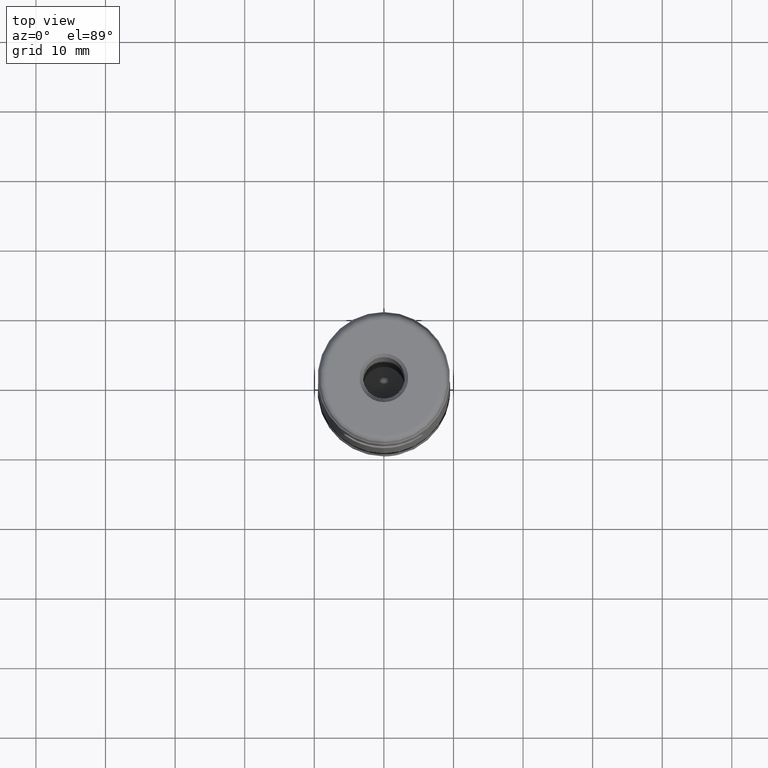
[diagram: clean part render]
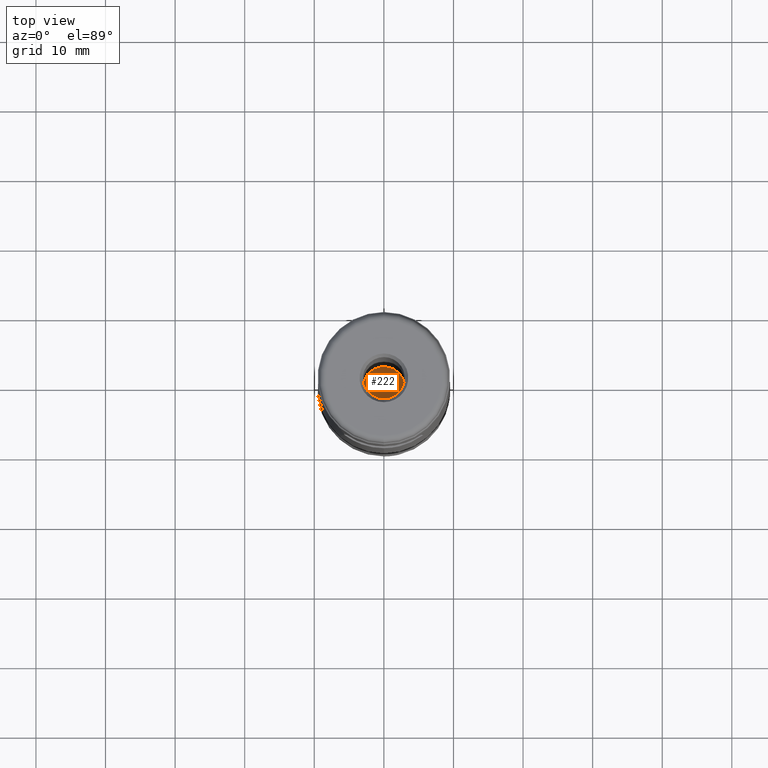
[diagram: same view with one face highlighted and labeled with its STEP entity id]
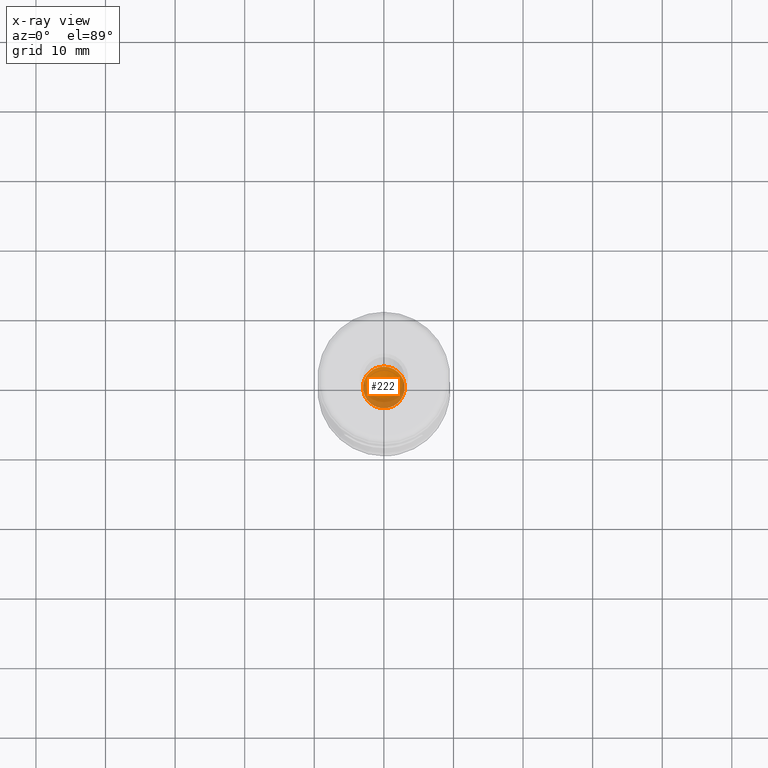
[diagram: x-ray of the same camera — body ghosted, the highlighted face saturated]
A machine part, top view. The second image highlights one B-rep face of the part: STEP entity #222.
The next image is the same camera in x-ray: the body ghosted, the highlighted face saturated — about 29% of this face is hidden behind the body in this view.
In plain terms, the highlighted conical surface has half-angle 59 deg.
Its self-contained STEP definition (entity closure, byte-faithful):
#157=VERTEX_LOOP('',#571);
#202=CONICAL_SURFACE('',#770,3.,59.);
#222=ADVANCED_FACE('',(#293,#294),#202,.F.);
#293=FACE_BOUND('',#380,.T.);
#294=FACE_BOUND('',#157,.T.);
#380=EDGE_LOOP('',(#477));
#477=ORIENTED_EDGE('',*,*,#622,.T.);
#570=VERTEX_POINT('',#1308);
#571=VERTEX_POINT('',#1309);
#622=EDGE_CURVE('',#570,#570,#668,.T.);
#668=CIRCLE('',#769,3.);
#769=AXIS2_PLACEMENT_3D('',#1307,#879,#880);
#770=AXIS2_PLACEMENT_3D('',#1310,#881,#882);
#879=DIRECTION('',(0.,1.17145536458252E-15,1.));
#880=DIRECTION('',(0.,1.,-1.15648231731787E-15));
#881=DIRECTION('',(0.,1.17145536458252E-15,1.));
#882=DIRECTION('',(0.,-1.,1.24021821491451E-15));
#1307=CARTESIAN_POINT('',(0.,2.53034358749825E-14,21.6));
#1308=CARTESIAN_POINT('',(0.,3.00000000000003,21.6));
#1309=CARTESIAN_POINT('',(0.,2.31917916884039E-14,19.7974181429173));
#1310=CARTESIAN_POINT('',(0.,2.53034358749825E-14,21.6));